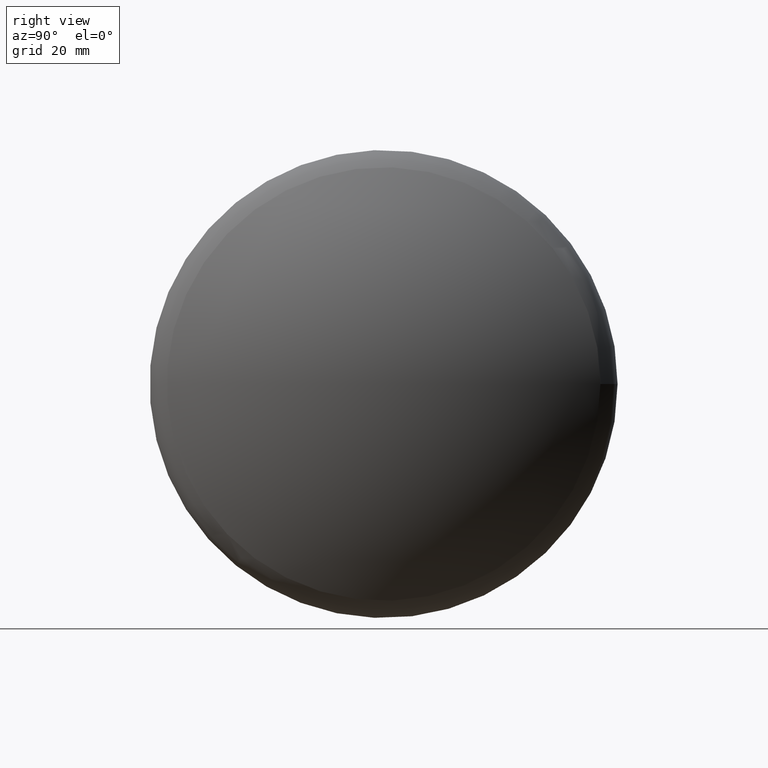
[diagram: clean part render]
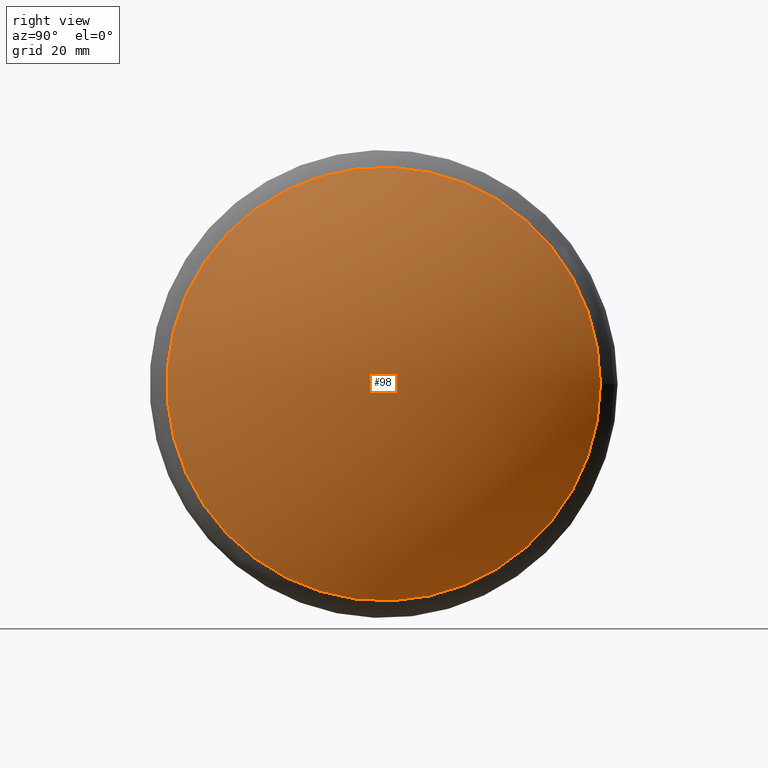
[diagram: same view with one face highlighted and labeled with its STEP entity id]
A machine part, right view. The second image highlights one B-rep face of the part: STEP entity #98.
In plain terms, the highlighted spherical surface has radius 128.998 mm.
Its self-contained STEP definition (entity closure, byte-faithful):
#17=SPHERICAL_SURFACE('',#112,128.99804964539);
#30=FACE_OUTER_BOUND('',#41,.T.);
#41=EDGE_LOOP('',(#81));
#54=CIRCLE('',#109,74.5957894753071);
#62=VERTEX_POINT('',#164);
#70=EDGE_CURVE('',#62,#62,#54,.T.);
#81=ORIENTED_EDGE('',*,*,#70,.F.);
#98=ADVANCED_FACE('',(#30),#17,.T.);
#109=AXIS2_PLACEMENT_3D('',#165,#130,#131);
#112=AXIS2_PLACEMENT_3D('',#169,#136,#137);
#130=DIRECTION('center_axis',(-1.,-1.22659912418785E-16,0.));
#131=DIRECTION('ref_axis',(1.24124313312129E-16,-1.,1.83697019872103E-16));
#136=DIRECTION('center_axis',(0.,0.,1.));
#137=DIRECTION('ref_axis',(1.,0.,0.));
#164=CARTESIAN_POINT('',(-23.755638969512,74.5957894753071,-2.28383737027012E-14));
#165=CARTESIAN_POINT('Origin',(-23.755638969512,-2.91693060024647E-15,0.));
#169=CARTESIAN_POINT('Origin',(-128.99804964539,-1.57977048594478E-14,0.));